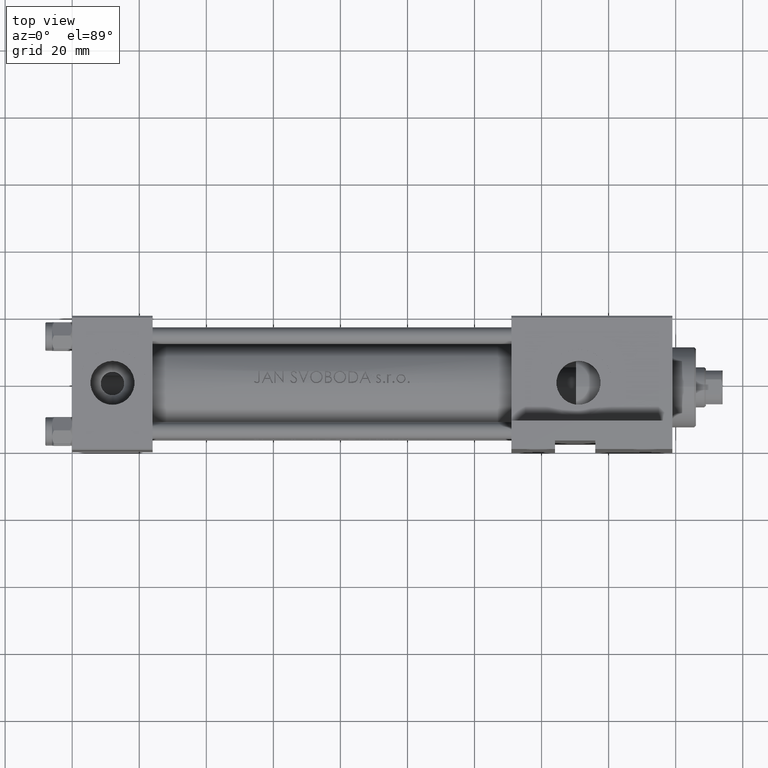
[diagram: clean part render]
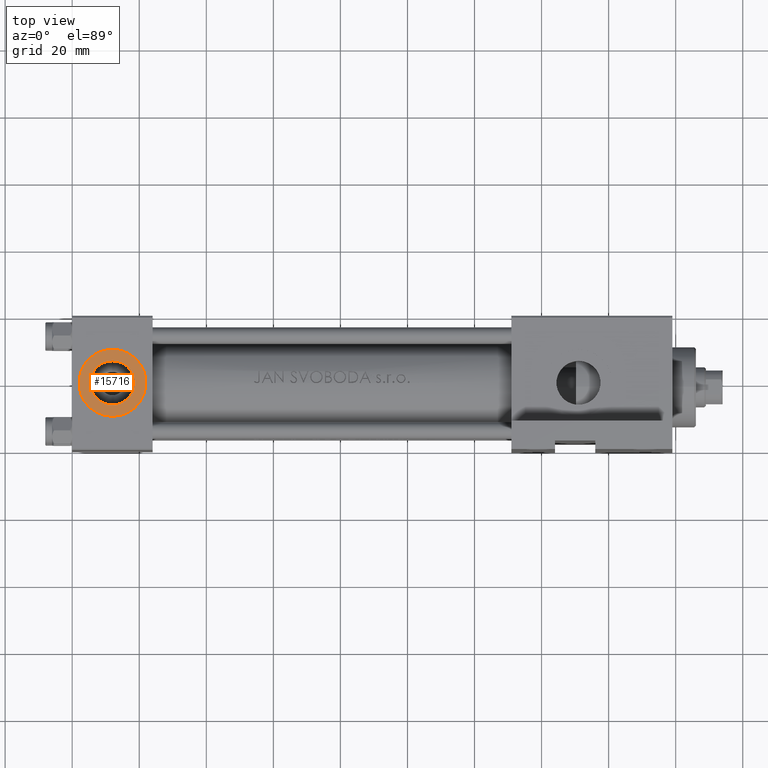
[diagram: same view with one face highlighted and labeled with its STEP entity id]
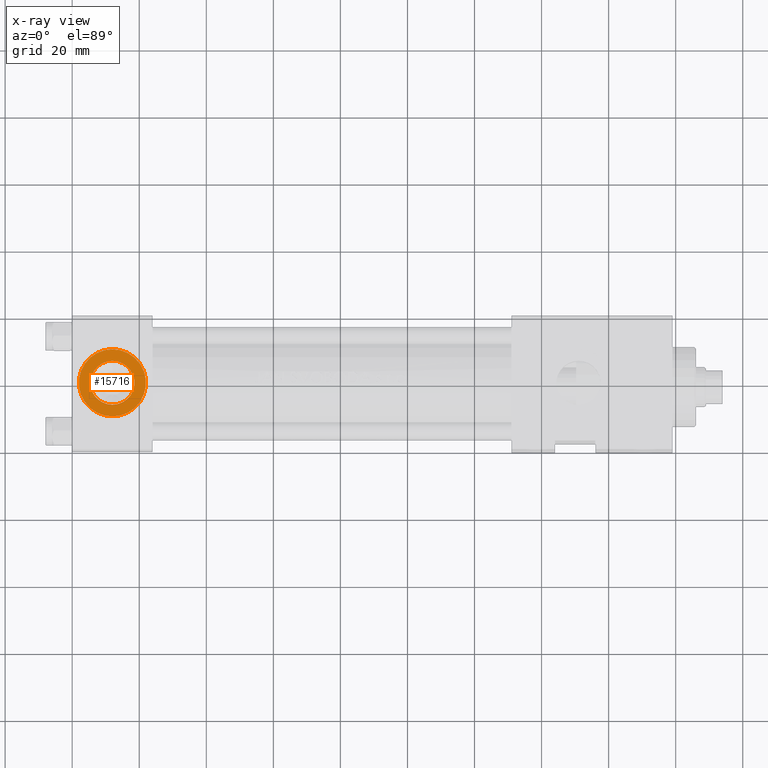
[diagram: x-ray of the same camera — body ghosted, the highlighted face saturated]
A machine part, top view. The second image highlights one B-rep face of the part: STEP entity #15716.
The next image is the same camera in x-ray: the body ghosted, the highlighted face saturated — about 0% of this face is hidden behind the body in this view.
In plain terms, the highlighted planar face has unit normal (0, -0, 1).
Its self-contained STEP definition (entity closure, byte-faithful):
#804 = DIRECTION ( 'NONE',  ( 0.000000000000000000, 0.000000000000000000, -1.000000000000000000 ) ) ;
#1084 = DIRECTION ( 'NONE',  ( 0.000000000000000000, 0.000000000000000000, -1.000000000000000000 ) ) ;
#1153 = CARTESIAN_POINT ( 'NONE',  ( 12.00000000000000000, -19.80000000000000426, -1.717376241217039812E-15 ) ) ;
#3787 = EDGE_CURVE ( 'NONE', #33245, #7569, #7182, .T. ) ;
#4688 = ORIENTED_EDGE ( 'NONE', *, *, #3787, .T. ) ;
#5686 = AXIS2_PLACEMENT_3D ( 'NONE', #30426, #41764, #804 ) ;
#7182 = CIRCLE ( 'NONE', #5686, 9.999999999999996447 ) ;
#7278 = VERTEX_POINT ( 'NONE', #32272 ) ;
#7569 = VERTEX_POINT ( 'NONE', #21600 ) ;
#8793 = EDGE_CURVE ( 'NONE', #7278, #21243, #42642, .T. ) ;
#9093 = PLANE ( 'NONE',  #37458 ) ;
#9399 = AXIS2_PLACEMENT_3D ( 'NONE', #38166, #35257, #15974 ) ;
#11391 = CARTESIAN_POINT ( 'NONE',  ( 12.00000000000000000, -19.80000000000000426, -9.999999999999998224 ) ) ;
#15716 = ADVANCED_FACE ( 'NONE', ( #34374, #42567 ), #9093, .T. ) ;
#15974 = DIRECTION ( 'NONE',  ( 0.000000000000000000, 0.000000000000000000, -1.000000000000000000 ) ) ;
#16489 = AXIS2_PLACEMENT_3D ( 'NONE', #1153, #35115, #41873 ) ;
#16538 = DIRECTION ( 'NONE',  ( 0.000000000000000000, -1.000000000000000000, -8.673617379884036705E-17 ) ) ;
#18212 = ORIENTED_EDGE ( 'NONE', *, *, #41865, .T. ) ;
#21243 = VERTEX_POINT ( 'NONE', #46735 ) ;
#21600 = CARTESIAN_POINT ( 'NONE',  ( 12.00000000000000178, -19.80000000000000426, 9.999999999999994671 ) ) ;
#22748 = CARTESIAN_POINT ( 'NONE',  ( 12.00000000000000000, -19.80000000000000426, -1.717376241217039812E-15 ) ) ;
#23522 = DIRECTION ( 'NONE',  ( 0.000000000000000000, 8.673617379884036705E-17, -1.000000000000000000 ) ) ;
#25553 = CIRCLE ( 'NONE', #27111, 6.579999999999998295 ) ;
#26115 = ORIENTED_EDGE ( 'NONE', *, *, #47214, .F. ) ;
#27042 = CIRCLE ( 'NONE', #9399, 9.999999999999996447 ) ;
#27111 = AXIS2_PLACEMENT_3D ( 'NONE', #22748, #40834, #1084 ) ;
#30426 = CARTESIAN_POINT ( 'NONE',  ( 12.00000000000000000, -19.80000000000000426, -1.717376241217039812E-15 ) ) ;
#32272 = CARTESIAN_POINT ( 'NONE',  ( 12.00000000000000000, -19.80000000000000426, -6.580000000000000071 ) ) ;
#33245 = VERTEX_POINT ( 'NONE', #11391 ) ;
#34374 = FACE_BOUND ( 'NONE', #40927, .T. ) ;
#35096 = CARTESIAN_POINT ( 'NONE',  ( 12.00000000000000000, -19.80000000000000426, -1.717376241217039812E-15 ) ) ;
#35115 = DIRECTION ( 'NONE',  ( 0.000000000000000000, -1.000000000000000000, -8.673617379884036705E-17 ) ) ;
#35257 = DIRECTION ( 'NONE',  ( 0.000000000000000000, -1.000000000000000000, -8.673617379884036705E-17 ) ) ;
#37458 = AXIS2_PLACEMENT_3D ( 'NONE', #35096, #16538, #23522 ) ;
#38166 = CARTESIAN_POINT ( 'NONE',  ( 12.00000000000000000, -19.80000000000000426, -1.717376241217039812E-15 ) ) ;
#40834 = DIRECTION ( 'NONE',  ( 0.000000000000000000, -1.000000000000000000, -8.673617379884036705E-17 ) ) ;
#40927 = EDGE_LOOP ( 'NONE', ( #41908, #26115 ) ) ;
#41557 = EDGE_LOOP ( 'NONE', ( #4688, #18212 ) ) ;
#41764 = DIRECTION ( 'NONE',  ( 0.000000000000000000, -1.000000000000000000, -8.673617379884036705E-17 ) ) ;
#41865 = EDGE_CURVE ( 'NONE', #7569, #33245, #27042, .T. ) ;
#41873 = DIRECTION ( 'NONE',  ( 0.000000000000000000, 0.000000000000000000, -1.000000000000000000 ) ) ;
#41908 = ORIENTED_EDGE ( 'NONE', *, *, #8793, .F. ) ;
#42567 = FACE_OUTER_BOUND ( 'NONE', #41557, .T. ) ;
#42642 = CIRCLE ( 'NONE', #16489, 6.579999999999998295 ) ;
#46735 = CARTESIAN_POINT ( 'NONE',  ( 12.00000000000000000, -19.80000000000000426, 6.579999999999996518 ) ) ;
#47214 = EDGE_CURVE ( 'NONE', #21243, #7278, #25553, .T. ) ;